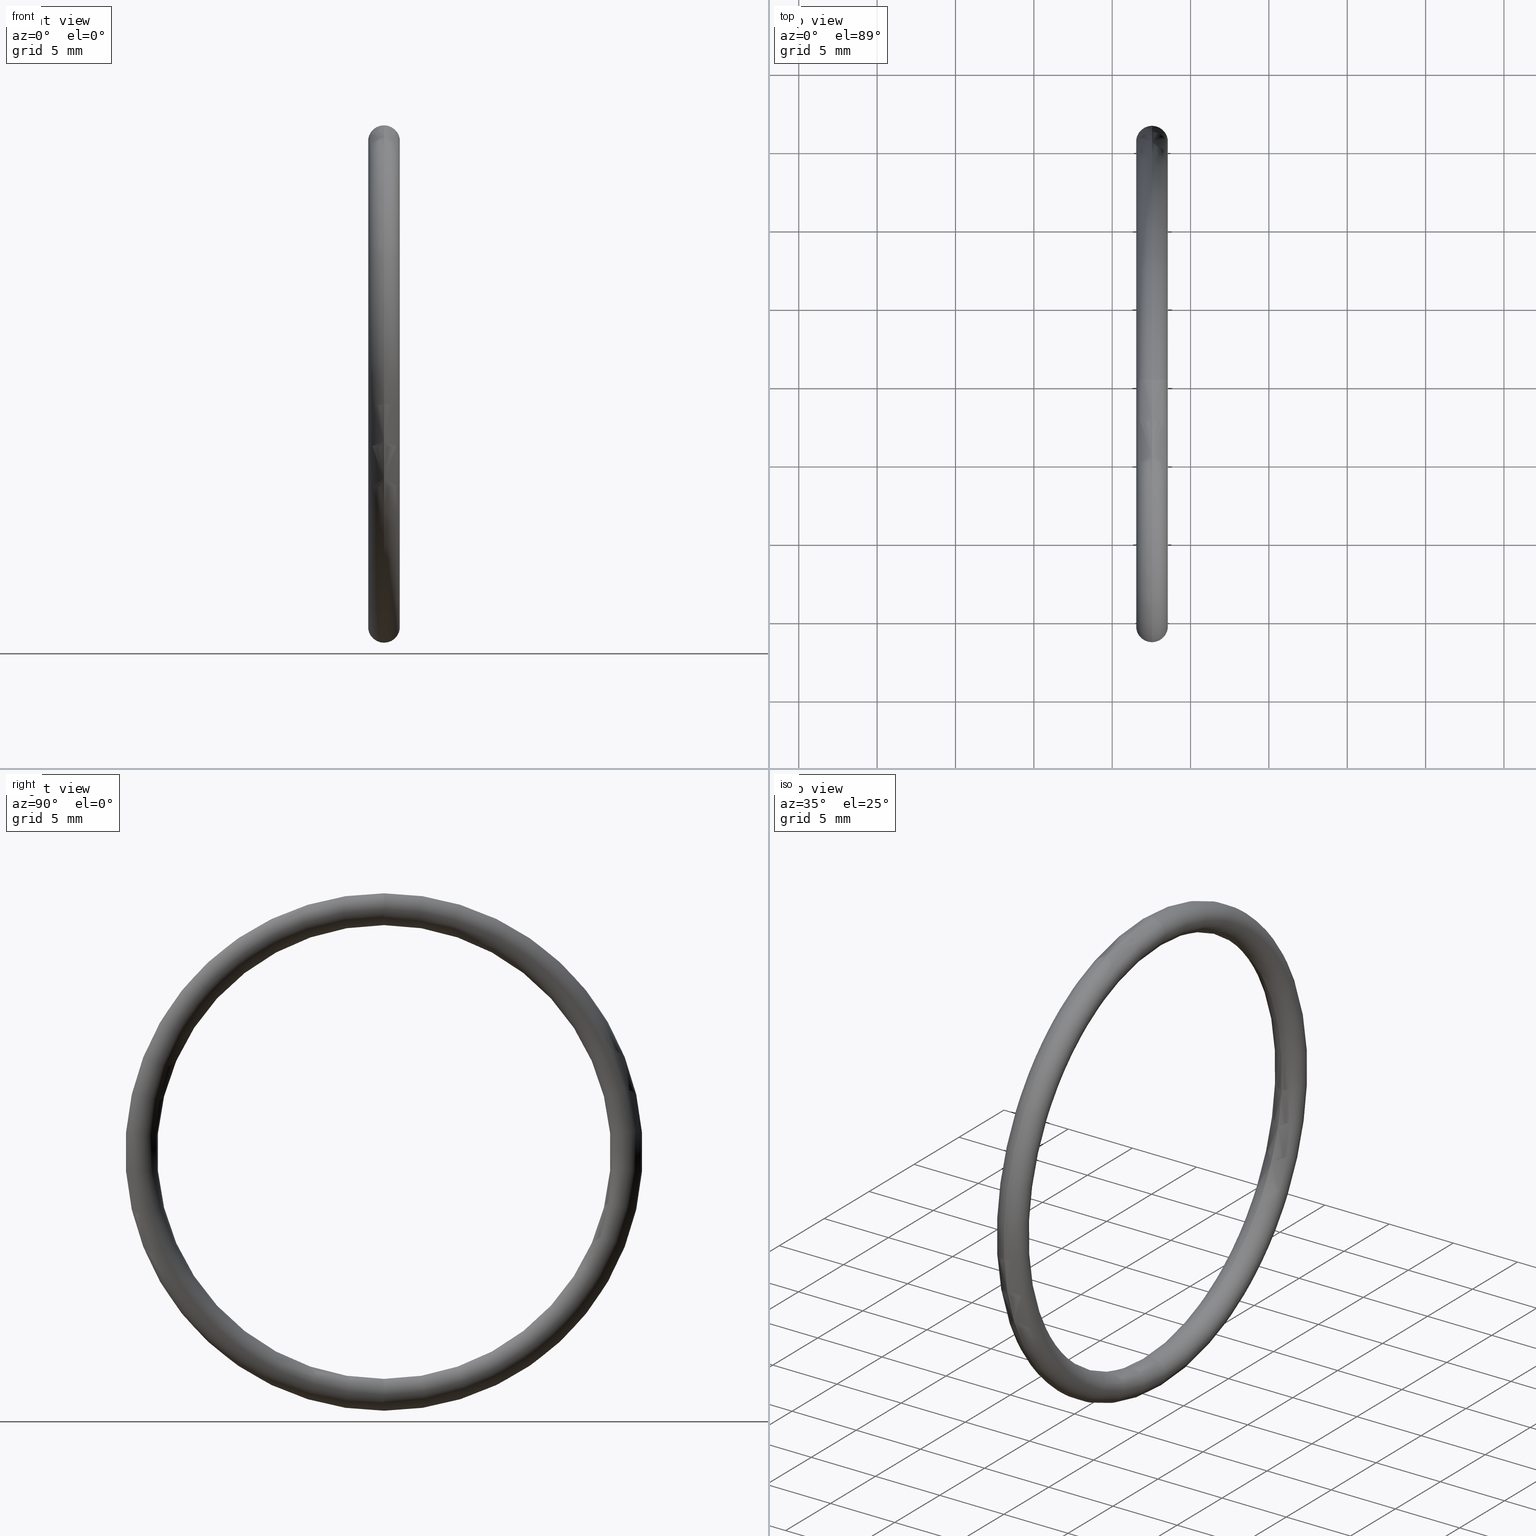
[diagram: canonical four-view strip — front | top / right | iso, engineering-drawing reading convention]
A machine part, canonical four-view strip (front | top / right | iso — engineering-drawing reading convention). The complete STEP part file that produces these views, byte-faithful:
ISO-10303-21;
HEADER;
FILE_DESCRIPTION (( 'STEP AP203' ),
    '1' );
FILE_NAME ('OM-32-SI.STEP',
    '2006-03-03T08:01:20',
    ( 'bay06' ),
    ( '' ),
    'SwSTEP 2.0',
    'SolidWorks 2008',
    '' );
FILE_SCHEMA (( 'CONFIG_CONTROL_DESIGN' ));
ENDSEC;

DATA;
#1 = ADVANCED_FACE ( 'NONE', ( #34 ), #43, .T. ) ;
#2 = VERTEX_POINT ( 'NONE', #47 ) ;
#3 = VERTEX_POINT ( 'NONE', #81 ) ;
#4 = ORIENTED_EDGE ( 'NONE', *, *, #6, .T. ) ;
#5 = ORIENTED_EDGE ( 'NONE', *, *, #7, .F. ) ;
#6 = EDGE_CURVE ( 'NONE', #3, #9, #57, .T. ) ;
#7 = EDGE_CURVE ( 'NONE', #3, #2, #53, .T. ) ;
#8 = ORIENTED_EDGE ( 'NONE', *, *, #17, .F. ) ;
#9 = VERTEX_POINT ( 'NONE', #48 ) ;
#10 = ORIENTED_EDGE ( 'NONE', *, *, #40, .T. ) ;
#11 = EDGE_LOOP ( 'NONE', ( #37, #38, #39, #12 ) ) ;
#12 = ORIENTED_EDGE ( 'NONE', *, *, #27, .T. ) ;
#13 = EDGE_LOOP ( 'NONE', ( #5, #4, #10, #8 ) ) ;
#14 = MANIFOLD_SOLID_BREP ( 'NONE', #16 ) ;
#15 = CC_DESIGN_PERSON_AND_ORGANIZATION_ASSIGNMENT ( #33, #32, ( #133 ) ) ;
#16 = CLOSED_SHELL ( 'NONE', ( #1, #42, #25, #30 ) ) ;
#17 = EDGE_CURVE ( 'NONE', #2, #20, #65, .T. ) ;
#18 = ORIENTED_EDGE ( 'NONE', *, *, #24, .F. ) ;
#19 = ORIENTED_EDGE ( 'NONE', *, *, #41, .T. ) ;
#20 = VERTEX_POINT ( 'NONE', #60 ) ;
#21 = ORIENTED_EDGE ( 'NONE', *, *, #40, .F. ) ;
#22 = ORIENTED_EDGE ( 'NONE', *, *, #7, .T. ) ;
#23 = ORIENTED_EDGE ( 'NONE', *, *, #24, .T. ) ;
#24 = EDGE_CURVE ( 'NONE', #9, #3, #59, .T. ) ;
#25 = ADVANCED_FACE ( 'NONE', ( #87 ), #82, .T. ) ;
#26 = ORIENTED_EDGE ( 'NONE', *, *, #27, .F. ) ;
#27 = EDGE_CURVE ( 'NONE', #20, #9, #75, .T. ) ;
#28 = ORIENTED_EDGE ( 'NONE', *, *, #29, .T. ) ;
#29 = EDGE_CURVE ( 'NONE', #2, #3, #70, .T. ) ;
#30 = ADVANCED_FACE ( 'NONE', ( #66 ), #109, .T. ) ;
#31 = ORIENTED_EDGE ( 'NONE', *, *, #41, .F. ) ;
#32 = PERSON_AND_ORGANIZATION_ROLE ( 'creator' ) ;
#33 = PERSON_AND_ORGANIZATION ( #90, #140 ) ;
#34 = FACE_OUTER_BOUND ( 'NONE', #13, .T. ) ;
#35 = EDGE_LOOP ( 'NONE', ( #18, #26, #19, #28 ) ) ;
#36 = EDGE_LOOP ( 'NONE', ( #21, #23, #22, #31 ) ) ;
#37 = ORIENTED_EDGE ( 'NONE', *, *, #6, .F. ) ;
#38 = ORIENTED_EDGE ( 'NONE', *, *, #29, .F. ) ;
#39 = ORIENTED_EDGE ( 'NONE', *, *, #17, .T. ) ;
#40 = EDGE_CURVE ( 'NONE', #9, #20, #98, .T. ) ;
#41 = EDGE_CURVE ( 'NONE', #20, #2, #111, .T. ) ;
#42 = ADVANCED_FACE ( 'NONE', ( #112 ), #101, .T. ) ;
#43 = TOROIDAL_SURFACE ( 'NONE', #52, 0.6099999999999998800, 0.04000000000000000100 ) ;
#44 = DIRECTION ( 'NONE',  ( 0.0000000000000000000, 0.0000000000000000000, 1.000000000000000000 ) ) ;
#45 = DIRECTION ( 'NONE',  ( -1.000000000000000000, -0.0000000000000000000, -0.0000000000000000000 ) ) ;
#46 = CARTESIAN_POINT ( 'NONE',  ( 0.1000000000000000700, 0.0000000000000000000, 0.0000000000000000000 ) ) ;
#47 = CARTESIAN_POINT ( 'NONE',  ( 0.1000000000000000700, 6.980486755139912600E-017, -0.5699999999999999500 ) ) ;
#48 = CARTESIAN_POINT ( 'NONE',  ( 0.1000000000000000700, 0.0000000000000000000, 0.6499999999999999100 ) ) ;
#49 = DIRECTION ( 'NONE',  ( 0.0000000000000000000, -1.224646799147354900E-016, 1.000000000000000000 ) ) ;
#50 = DIRECTION ( 'NONE',  ( -0.0000000000000000000, 1.000000000000000000, 1.224646799147353200E-016 ) ) ;
#51 = AXIS2_PLACEMENT_3D ( 'NONE', #58, #50, #49 ) ;
#52 = AXIS2_PLACEMENT_3D ( 'NONE', #46, #45, #44 ) ;
#53 = CIRCLE ( 'NONE', #51, 0.03999999999999998000 ) ;
#54 = DIRECTION ( 'NONE',  ( 0.0000000000000000000, 0.0000000000000000000, 1.000000000000000000 ) ) ;
#55 = DIRECTION ( 'NONE',  ( -1.000000000000000000, -0.0000000000000000000, -0.0000000000000000000 ) ) ;
#56 = AXIS2_PLACEMENT_3D ( 'NONE', #88, #55, #54 ) ;
#57 = CIRCLE ( 'NONE', #56, 0.6499999999999999100 ) ;
#58 = CARTESIAN_POINT ( 'NONE',  ( 0.1000000000000000700, 7.470345474798854000E-017, -0.6099999999999998800 ) ) ;
#59 = CIRCLE ( 'NONE', #86, 0.6499999999999999100 ) ;
#60 = CARTESIAN_POINT ( 'NONE',  ( 0.1000000000000000700, 0.0000000000000000000, 0.5699999999999999500 ) ) ;
#61 = DIRECTION ( 'NONE',  ( 0.0000000000000000000, 0.0000000000000000000, 1.000000000000000000 ) ) ;
#62 = DIRECTION ( 'NONE',  ( -1.000000000000000000, -0.0000000000000000000, -0.0000000000000000000 ) ) ;
#63 = CARTESIAN_POINT ( 'NONE',  ( 0.1000000000000000700, 0.0000000000000000000, 0.0000000000000000000 ) ) ;
#64 = AXIS2_PLACEMENT_3D ( 'NONE', #63, #62, #61 ) ;
#65 = CIRCLE ( 'NONE', #64, 0.5699999999999999500 ) ;
#66 = FACE_OUTER_BOUND ( 'NONE', #11, .T. ) ;
#67 = DIRECTION ( 'NONE',  ( 0.0000000000000000000, -1.224646799147354900E-016, 1.000000000000000000 ) ) ;
#68 = DIRECTION ( 'NONE',  ( -0.0000000000000000000, 1.000000000000000000, 1.224646799147353200E-016 ) ) ;
#69 = AXIS2_PLACEMENT_3D ( 'NONE', #76, #68, #67 ) ;
#70 = CIRCLE ( 'NONE', #69, 0.03999999999999998000 ) ;
#71 = DIRECTION ( 'NONE',  ( 0.0000000000000000000, 0.0000000000000000000, -1.000000000000000000 ) ) ;
#72 = DIRECTION ( 'NONE',  ( 0.0000000000000000000, -1.000000000000000000, 0.0000000000000000000 ) ) ;
#73 = CARTESIAN_POINT ( 'NONE',  ( 0.1000000000000000700, 0.0000000000000000000, 0.6099999999999998800 ) ) ;
#74 = AXIS2_PLACEMENT_3D ( 'NONE', #73, #72, #71 ) ;
#75 = CIRCLE ( 'NONE', #74, 0.03999999999999998000 ) ;
#76 = CARTESIAN_POINT ( 'NONE',  ( 0.1000000000000000700, 7.470345474798854000E-017, -0.6099999999999998800 ) ) ;
#77 = DIRECTION ( 'NONE',  ( 0.0000000000000000000, 0.0000000000000000000, 1.000000000000000000 ) ) ;
#78 = DIRECTION ( 'NONE',  ( -1.000000000000000000, -0.0000000000000000000, -0.0000000000000000000 ) ) ;
#79 = CARTESIAN_POINT ( 'NONE',  ( 0.1000000000000000700, 0.0000000000000000000, 0.0000000000000000000 ) ) ;
#80 = AXIS2_PLACEMENT_3D ( 'NONE', #79, #78, #77 ) ;
#81 = CARTESIAN_POINT ( 'NONE',  ( 0.1000000000000000700, 7.960204194457794200E-017, -0.6499999999999999100 ) ) ;
#82 = TOROIDAL_SURFACE ( 'NONE', #80, 0.6099999999999998800, 0.04000000000000000100 ) ;
#83 = DIRECTION ( 'NONE',  ( 0.0000000000000000000, 0.0000000000000000000, 1.000000000000000000 ) ) ;
#84 = DIRECTION ( 'NONE',  ( -1.000000000000000000, -0.0000000000000000000, -0.0000000000000000000 ) ) ;
#85 = CARTESIAN_POINT ( 'NONE',  ( 0.1000000000000000700, 0.0000000000000000000, 0.0000000000000000000 ) ) ;
#86 = AXIS2_PLACEMENT_3D ( 'NONE', #85, #84, #83 ) ;
#87 = FACE_OUTER_BOUND ( 'NONE', #35, .T. ) ;
#88 = CARTESIAN_POINT ( 'NONE',  ( 0.1000000000000000700, 0.0000000000000000000, 0.0000000000000000000 ) ) ;
#89 = DIRECTION ( 'NONE',  ( 0.0000000000000000000, -1.000000000000000000, 0.0000000000000000000 ) ) ;
#90 = PERSON ( 'UNSPECIFIED', 'UNSPECIFIED', 'UNSPECIFIED', ('UNSPECIFIED'), ('UNSPECIFIED'), ('UNSPECIFIED') ) ;
#91 = PRODUCT ( 'OM-32-SI', 'OM-32-SI', '', ( #92 ) ) ;
#92 = MECHANICAL_CONTEXT ( 'NONE', #142, 'mechanical' ) ;
#93 = APPLICATION_PROTOCOL_DEFINITION ( 'international standard', 'config_control_design', 1994, #142 ) ;
#94 = DIRECTION ( 'NONE',  ( 0.0000000000000000000, 0.0000000000000000000, 1.000000000000000000 ) ) ;
#95 = DIRECTION ( 'NONE',  ( 1.000000000000000000, 0.0000000000000000000, 0.0000000000000000000 ) ) ;
#96 = DIRECTION ( 'NONE',  ( -1.000000000000000000, -0.0000000000000000000, -0.0000000000000000000 ) ) ;
#97 = AXIS2_PLACEMENT_3D ( 'NONE', #104, #96, #102 ) ;
#98 = CIRCLE ( 'NONE', #141, 0.03999999999999998000 ) ;
#99 = AXIS2_PLACEMENT_3D ( 'NONE', #103, #144, #117 ) ;
#100 = AXIS2_PLACEMENT_3D ( 'NONE', #115, #114, #113 ) ;
#101 = TOROIDAL_SURFACE ( 'NONE', #100, 0.6099999999999998800, 0.04000000000000000100 ) ;
#102 = DIRECTION ( 'NONE',  ( 0.0000000000000000000, 0.0000000000000000000, 1.000000000000000000 ) ) ;
#103 = CARTESIAN_POINT ( 'NONE',  ( 0.1000000000000000700, 0.0000000000000000000, 0.0000000000000000000 ) ) ;
#104 = CARTESIAN_POINT ( 'NONE',  ( 0.1000000000000000700, 0.0000000000000000000, 0.0000000000000000000 ) ) ;
#105 = DIRECTION ( 'NONE',  ( 0.0000000000000000000, 0.0000000000000000000, -1.000000000000000000 ) ) ;
#106 =( NAMED_UNIT ( * ) SI_UNIT ( $, .STERADIAN. ) SOLID_ANGLE_UNIT ( ) );
#107 =( NAMED_UNIT ( * ) PLANE_ANGLE_UNIT ( ) SI_UNIT ( $, .RADIAN. ) );
#108 =( LENGTH_UNIT ( ) NAMED_UNIT ( * ) SI_UNIT ( $, .METRE. ) );
#109 = TOROIDAL_SURFACE ( 'NONE', #99, 0.6099999999999998800, 0.04000000000000000100 ) ;
#110 = UNCERTAINTY_MEASURE_WITH_UNIT (LENGTH_MEASURE( 1.000000000000000100E-005 ), #145, 'distance_accuracy_value', 'NONE');
#111 = CIRCLE ( 'NONE', #97, 0.5699999999999999500 ) ;
#112 = FACE_OUTER_BOUND ( 'NONE', #36, .T. ) ;
#113 = DIRECTION ( 'NONE',  ( 0.0000000000000000000, 0.0000000000000000000, 1.000000000000000000 ) ) ;
#114 = DIRECTION ( 'NONE',  ( -1.000000000000000000, -0.0000000000000000000, -0.0000000000000000000 ) ) ;
#115 = CARTESIAN_POINT ( 'NONE',  ( 0.1000000000000000700, 0.0000000000000000000, 0.0000000000000000000 ) ) ;
#116 = CARTESIAN_POINT ( 'NONE',  ( 0.0000000000000000000, 0.0000000000000000000, 0.0000000000000000000 ) ) ;
#117 = DIRECTION ( 'NONE',  ( 0.0000000000000000000, 0.0000000000000000000, 1.000000000000000000 ) ) ;
#118 = ADVANCED_BREP_SHAPE_REPRESENTATION ( 'OM-32-SI', ( #14, #143 ), #119 ) ;
#119 =( GEOMETRIC_REPRESENTATION_CONTEXT ( 3 ) GLOBAL_UNCERTAINTY_ASSIGNED_CONTEXT ( ( #110 ) ) GLOBAL_UNIT_ASSIGNED_CONTEXT ( ( #145, #107, #106 ) ) REPRESENTATION_CONTEXT ( 'NONE', 'WORKASPACE' ) );
#120 = DIMENSIONAL_EXPONENTS ( 1.000000000000000000, 0.0000000000000000000, 0.0000000000000000000, 0.0000000000000000000, 0.0000000000000000000, 0.0000000000000000000, 0.0000000000000000000 ) ;
#121 = CARTESIAN_POINT ( 'NONE',  ( 0.1000000000000000700, 0.0000000000000000000, 0.6099999999999998800 ) ) ;
#122 = CC_DESIGN_APPROVAL ( #130, ( #133 ) ) ;
#123 = APPROVAL_DATE_TIME ( #124, #130 ) ;
#124 = DATE_AND_TIME ( #125, #126 ) ;
#125 = CALENDAR_DATE ( 2006, 3, 3 ) ;
#126 = LOCAL_TIME ( 13, 31, 20.00000000000000000, #127 ) ;
#127 = COORDINATED_UNIVERSAL_TIME_OFFSET ( 5, 30, .AHEAD. ) ;
#128 = APPROVAL_PERSON_ORGANIZATION ( #132, #130, #129 ) ;
#129 = APPROVAL_ROLE ( '' ) ;
#130 = APPROVAL ( #131, 'UNSPECIFIED' ) ;
#131 = APPROVAL_STATUS ( 'not_yet_approved' ) ;
#132 = PERSON_AND_ORGANIZATION ( #90, #140 ) ;
#133 = PRODUCT_DEFINITION ( 'UNKNOWN', '', #149, #134 ) ;
#134 = DESIGN_CONTEXT ( 'detailed design', #136, 'design' ) ;
#135 = APPLICATION_PROTOCOL_DEFINITION ( 'international standard', 'config_control_design', 1994, #136 ) ;
#136 = APPLICATION_CONTEXT ( 'configuration controlled 3d designs of mechanical parts and assemblies' ) ;
#137 = CC_DESIGN_PERSON_AND_ORGANIZATION_ASSIGNMENT ( #139, #138, ( #91 ) ) ;
#138 = PERSON_AND_ORGANIZATION_ROLE ( 'design_owner' ) ;
#139 = PERSON_AND_ORGANIZATION ( #90, #140 ) ;
#140 = ORGANIZATION ( 'UNSPECIFIED', 'UNSPECIFIED', '' ) ;
#141 = AXIS2_PLACEMENT_3D ( 'NONE', #121, #89, #105 ) ;
#142 = APPLICATION_CONTEXT ( 'configuration controlled 3d designs of mechanical parts and assemblies' ) ;
#143 = AXIS2_PLACEMENT_3D ( 'NONE', #116, #94, #95 ) ;
#144 = DIRECTION ( 'NONE',  ( -1.000000000000000000, -0.0000000000000000000, -0.0000000000000000000 ) ) ;
#145 =( CONVERSION_BASED_UNIT ( 'INCH', #146 ) LENGTH_UNIT ( ) NAMED_UNIT ( #120 ) );
#146 = LENGTH_MEASURE_WITH_UNIT ( LENGTH_MEASURE( 0.02539999999999999900 ), #108 );
#147 = DATE_AND_TIME ( #169, #150 ) ;
#148 = COORDINATED_UNIVERSAL_TIME_OFFSET ( 5, 30, .AHEAD. ) ;
#149 = PRODUCT_DEFINITION_FORMATION_WITH_SPECIFIED_SOURCE ( 'ANY', '', #91, .NOT_KNOWN. ) ;
#150 = LOCAL_TIME ( 13, 31, 20.00000000000000000, #148 ) ;
#151 = PERSON_AND_ORGANIZATION_ROLE ( 'creator' ) ;
#152 = PERSON_AND_ORGANIZATION ( #90, #140 ) ;
#153 = CC_DESIGN_APPROVAL ( #179, ( #149 ) ) ;
#154 = APPROVAL_DATE_TIME ( #155, #179 ) ;
#155 = DATE_AND_TIME ( #156, #157 ) ;
#156 = CALENDAR_DATE ( 2006, 3, 3 ) ;
#157 = LOCAL_TIME ( 13, 31, 20.00000000000000000, #158 ) ;
#158 = COORDINATED_UNIVERSAL_TIME_OFFSET ( 5, 30, .AHEAD. ) ;
#159 = APPROVAL_ROLE ( '' ) ;
#160 = APPROVAL ( #161, 'UNSPECIFIED' ) ;
#161 = APPROVAL_STATUS ( 'not_yet_approved' ) ;
#162 = PERSON_AND_ORGANIZATION ( #90, #140 ) ;
#163 = CC_DESIGN_DATE_AND_TIME_ASSIGNMENT ( #165, #164, ( #175 ) ) ;
#164 = DATE_TIME_ROLE ( 'classification_date' ) ;
#165 = DATE_AND_TIME ( #166, #167 ) ;
#166 = CALENDAR_DATE ( 2006, 3, 3 ) ;
#167 = LOCAL_TIME ( 13, 31, 20.00000000000000000, #168 ) ;
#168 = COORDINATED_UNIVERSAL_TIME_OFFSET ( 5, 30, .AHEAD. ) ;
#169 = CALENDAR_DATE ( 2006, 3, 3 ) ;
#170 = SHAPE_DEFINITION_REPRESENTATION ( #171, #118 ) ;
#171 = PRODUCT_DEFINITION_SHAPE ( 'NONE', 'NONE',  #133 ) ;
#172 = CC_DESIGN_PERSON_AND_ORGANIZATION_ASSIGNMENT ( #174, #173, ( #175 ) ) ;
#173 = PERSON_AND_ORGANIZATION_ROLE ( 'classification_officer' ) ;
#174 = PERSON_AND_ORGANIZATION ( #90, #140 ) ;
#175 = SECURITY_CLASSIFICATION ( '', '', #176 ) ;
#176 = SECURITY_CLASSIFICATION_LEVEL ( 'unclassified' ) ;
#177 = APPROVAL_PERSON_ORGANIZATION ( #181, #179, #178 ) ;
#178 = APPROVAL_ROLE ( '' ) ;
#179 = APPROVAL ( #180, 'UNSPECIFIED' ) ;
#180 = APPROVAL_STATUS ( 'not_yet_approved' ) ;
#181 = PERSON_AND_ORGANIZATION ( #90, #140 ) ;
#182 = DATE_TIME_ROLE ( 'creation_date' ) ;
#183 = CC_DESIGN_DATE_AND_TIME_ASSIGNMENT ( #147, #182, ( #133 ) ) ;
#184 = CC_DESIGN_PERSON_AND_ORGANIZATION_ASSIGNMENT ( #186, #185, ( #149 ) ) ;
#185 = PERSON_AND_ORGANIZATION_ROLE ( 'design_supplier' ) ;
#186 = PERSON_AND_ORGANIZATION ( #90, #140 ) ;
#187 = CC_DESIGN_PERSON_AND_ORGANIZATION_ASSIGNMENT ( #152, #151, ( #149 ) ) ;
#188 = PRODUCT_RELATED_PRODUCT_CATEGORY ( 'detail', '', ( #91 ) ) ;
#189 = CC_DESIGN_SECURITY_CLASSIFICATION ( #175, ( #149 ) ) ;
#190 = CC_DESIGN_APPROVAL ( #160, ( #175 ) ) ;
#191 = APPROVAL_DATE_TIME ( #192, #160 ) ;
#192 = DATE_AND_TIME ( #193, #194 ) ;
#193 = CALENDAR_DATE ( 2006, 3, 3 ) ;
#194 = LOCAL_TIME ( 13, 31, 20.00000000000000000, #195 ) ;
#195 = COORDINATED_UNIVERSAL_TIME_OFFSET ( 5, 30, .AHEAD. ) ;
#196 = APPROVAL_PERSON_ORGANIZATION ( #162, #160, #159 ) ;
ENDSEC;
END-ISO-10303-21;
